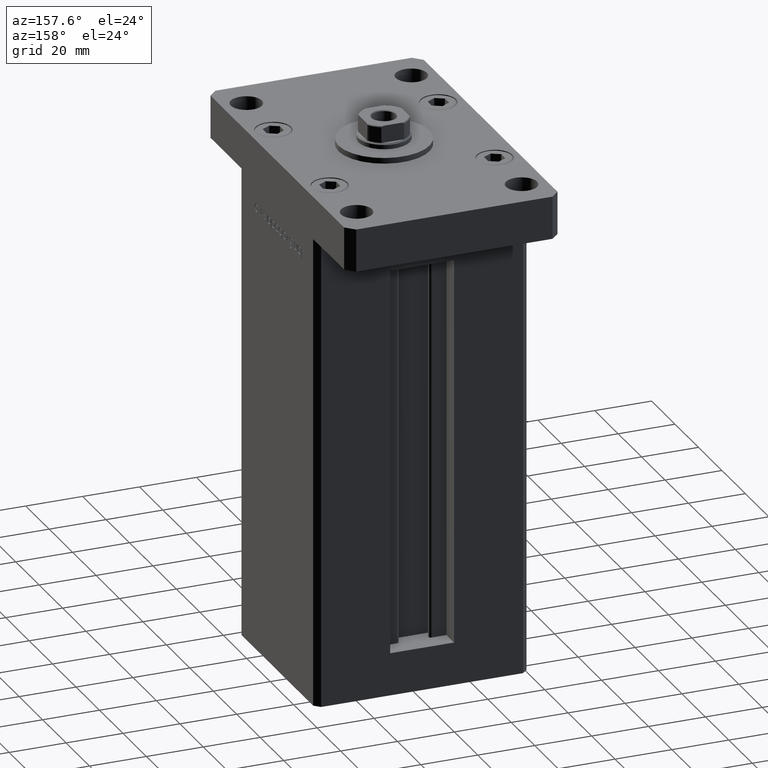
[diagram: clean part render]
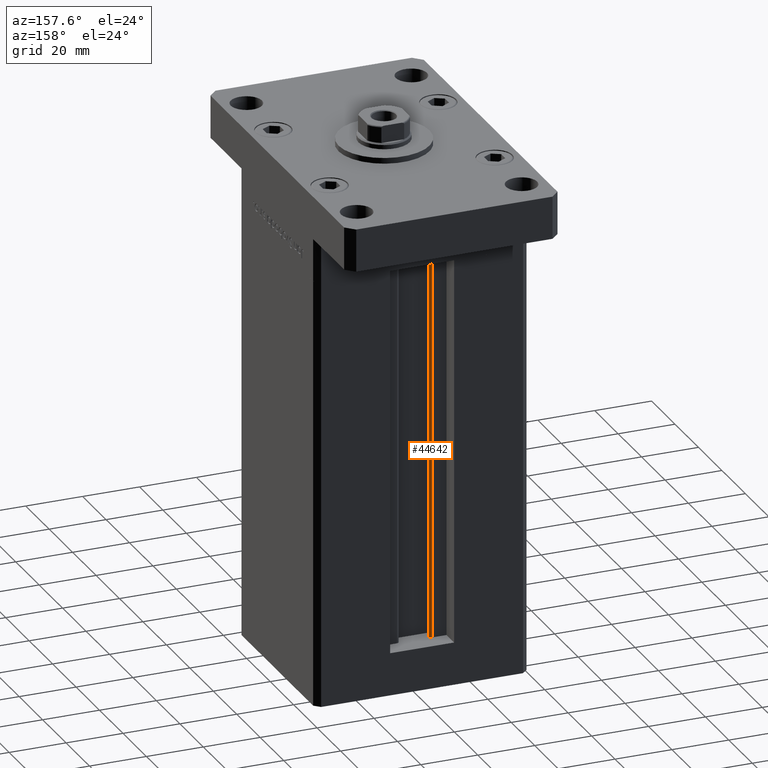
[diagram: same view with one face highlighted and labeled with its STEP entity id]
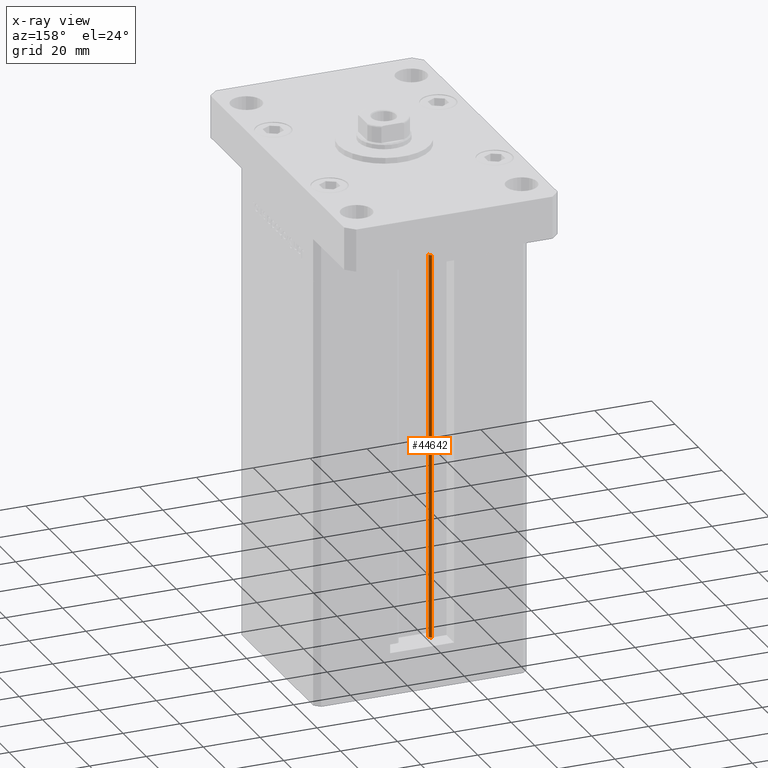
[diagram: x-ray of the same camera — body ghosted, the highlighted face saturated]
A machine part, auxiliary view. The second image highlights one B-rep face of the part: STEP entity #44642.
The next image is the same camera in x-ray: the body ghosted, the highlighted face saturated — about 1% of this face is hidden behind the body in this view.
In plain terms, the highlighted cylindrical surface (edge-blend (fillet) strip) has radius 0.9333 mm, axis along (0, 0, 1).
Its self-contained STEP definition (entity closure, byte-faithful):
#2373 = EDGE_CURVE ( 'NONE', #6392, #9200, #21748, .T. ) ;
#2958 = ORIENTED_EDGE ( 'NONE', *, *, #11410, .T. ) ;
#5318 = AXIS2_PLACEMENT_3D ( 'NONE', #38084, #16915, #9326 ) ;
#6129 = AXIS2_PLACEMENT_3D ( 'NONE', #26815, #46897, #22980 ) ;
#6183 = FACE_OUTER_BOUND ( 'NONE', #11659, .T. ) ;
#6392 = VERTEX_POINT ( 'NONE', #33341 ) ;
#9200 = VERTEX_POINT ( 'NONE', #21403 ) ;
#9326 = DIRECTION ( 'NONE',  ( 1.000000000000000000, 0.000000000000000000, 0.000000000000000000 ) ) ;
#11410 = EDGE_CURVE ( 'NONE', #9200, #36780, #12246, .T. ) ;
#11482 = DIRECTION ( 'NONE',  ( -0.000000000000000000, -0.000000000000000000, 1.000000000000000000 ) ) ;
#11659 = EDGE_LOOP ( 'NONE', ( #22888, #47188, #37040, #2958 ) ) ;
#11810 = DIRECTION ( 'NONE',  ( 1.000000000000000000, 0.000000000000000000, 0.000000000000000000 ) ) ;
#12246 = CIRCLE ( 'NONE', #5318, 0.9333333333340008142 ) ;
#15554 = CARTESIAN_POINT ( 'NONE',  ( -5.250000000000000000, 25.06666666666599141, 0.000000000000000000 ) ) ;
#16684 = DIRECTION ( 'NONE',  ( -0.000000000000000000, -0.000000000000000000, -1.000000000000000000 ) ) ;
#16865 = DIRECTION ( 'NONE',  ( -0.000000000000000000, -0.000000000000000000, 1.000000000000000000 ) ) ;
#16915 = DIRECTION ( 'NONE',  ( 0.000000000000000000, 0.000000000000000000, -1.000000000000000000 ) ) ;
#18177 = CARTESIAN_POINT ( 'NONE',  ( -5.250000000000000000, 25.06666666666599141, 136.0000000000000000 ) ) ;
#20213 = CARTESIAN_POINT ( 'NONE',  ( -6.183333333334001480, 25.06666666666599141, 0.000000000000000000 ) ) ;
#21403 = CARTESIAN_POINT ( 'NONE',  ( -6.183333333334001480, 25.99999999999999289, 136.0000000000000000 ) ) ;
#21748 = LINE ( 'NONE', #49973, #23270 ) ;
#22888 = ORIENTED_EDGE ( 'NONE', *, *, #23707, .F. ) ;
#22980 = DIRECTION ( 'NONE',  ( 1.000000000000000000, 0.000000000000000000, 0.000000000000000000 ) ) ;
#23270 = VECTOR ( 'NONE', #16865, 1000.000000000000000 ) ;
#23707 = EDGE_CURVE ( 'NONE', #33237, #36780, #31851, .T. ) ;
#26815 = CARTESIAN_POINT ( 'NONE',  ( -6.183333333334001480, 25.06666666666599141, 0.000000000000000000 ) ) ;
#31123 = AXIS2_PLACEMENT_3D ( 'NONE', #20213, #16684, #11810 ) ;
#31851 = LINE ( 'NONE', #15554, #37655 ) ;
#31970 = CIRCLE ( 'NONE', #31123, 0.9333333333340008142 ) ;
#33237 = VERTEX_POINT ( 'NONE', #38813 ) ;
#33341 = CARTESIAN_POINT ( 'NONE',  ( -6.183333333334001480, 25.99999999999999289, 0.000000000000000000 ) ) ;
#35320 = EDGE_CURVE ( 'NONE', #6392, #33237, #31970, .T. ) ;
#36780 = VERTEX_POINT ( 'NONE', #18177 ) ;
#37040 = ORIENTED_EDGE ( 'NONE', *, *, #2373, .T. ) ;
#37655 = VECTOR ( 'NONE', #11482, 1000.000000000000000 ) ;
#38084 = CARTESIAN_POINT ( 'NONE',  ( -6.183333333334001480, 25.06666666666599141, 136.0000000000000000 ) ) ;
#38813 = CARTESIAN_POINT ( 'NONE',  ( -5.250000000000000000, 25.06666666666599141, 0.000000000000000000 ) ) ;
#43617 = CYLINDRICAL_SURFACE ( 'NONE', #6129, 0.9333333333340008142 ) ;
#44642 = ADVANCED_FACE ( 'NONE', ( #6183 ), #43617, .T. ) ;
#46897 = DIRECTION ( 'NONE',  ( -0.000000000000000000, -0.000000000000000000, 1.000000000000000000 ) ) ;
#47188 = ORIENTED_EDGE ( 'NONE', *, *, #35320, .F. ) ;
#49973 = CARTESIAN_POINT ( 'NONE',  ( -6.183333333334001480, 25.99999999999999289, 0.000000000000000000 ) ) ;